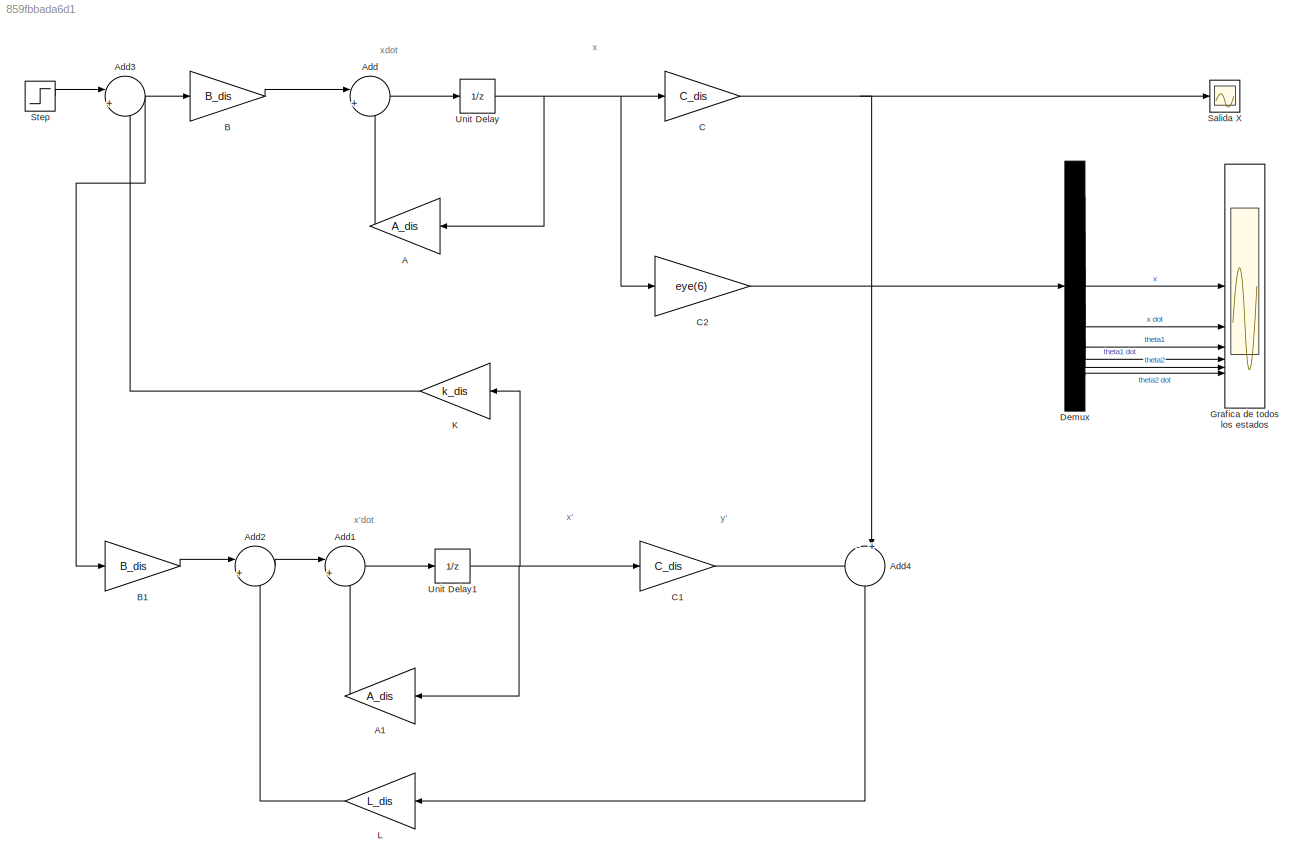
MODEL slx_859fbbada6d1
KIND model
CONFIG AbsTol = auto
CONFIG EnableMultiTasking = off
CONFIG FixedStep = auto
CONFIG MaxStep = auto
CONFIG MinStep = auto
CONFIG RelTol = 1e-3
CONFIG SampleTimeConstraint = Unconstrained
CONFIG SolverName = VariableStepAuto
CONFIG StartTime = 0.0
CONFIG StopTime = 25.0
BLOCK [Gain] A
  Gain = A_dis
  Multiplication = Matrix(K*u) (u vector)
  NameLocation = top
BLOCK [Gain] A1
  Gain = A_dis
  Multiplication = Matrix(K*u) (u vector)
  NameLocation = top
BLOCK [Sum] Add
  Inputs = |++
BLOCK [Sum] Add1
  Inputs = |++
BLOCK [Sum] Add2
  Inputs = |++
BLOCK [Sum] Add3
  Inputs = |+-
BLOCK [Sum] Add4
  Inputs = -+|
  NameLocation = left
BLOCK [Gain] B
  Gain = B_dis
  Multiplication = Matrix(K*u) (u vector)
BLOCK [Gain] B1
  Gain = B_dis
  Multiplication = Matrix(K*u) (u vector)
BLOCK [Gain] C
  Gain = C_dis
  Multiplication = Matrix(K*u) (u vector)
BLOCK [Gain] C1
  Gain = C_dis
  Multiplication = Matrix(K*u) (u vector)
BLOCK [Gain] C2
  Gain = eye(6)
  Multiplication = Matrix(K*u) (u vector)
BLOCK [Demux] Demux
  Outputs = 6
BLOCK [Scope] Grafica de todos los estados
  Floating = off
  NumInputPorts = 6
  ScopeSpecificationString = Simulink.scopes.TimeScopeBlockCfg('CurrentConfiguration', extmgr.ConfigurationSet(extmgr.Configuration('Core','General UI',true),extmgr.Configuration('Core','Source UI',true),extmgr.Configuration('Sources','WiredSimulink',true,'DataLoggingVariableName','ScopeData1'),extmgr.Configuration('Visuals','Time Domain',true,'SerializedDisplays',{struct('MinYLimReal','-0.00612','MaxYLimReal','0.03035','YLab...<+4860ch>
BLOCK [Gain] K
  Gain = k_dis
  Multiplication = Matrix(K*u) (u vector)
  NameLocation = top
BLOCK [Gain] L
  Gain = L_dis
  Multiplication = Matrix(K*u) (u vector)
  NameLocation = top
BLOCK [Scope] Salida X
  Floating = off
  NumInputPorts = 1
  ScopeSpecificationString = Simulink.scopes.TimeScopeBlockCfg('CurrentConfiguration', extmgr.ConfigurationSet(extmgr.Configuration('Core','General UI',true),extmgr.Configuration('Core','Source UI',true),extmgr.Configuration('Sources','WiredSimulink',true),extmgr.Configuration('Visuals','Time Domain',true,'SerializedDisplays',{struct('MinYLimReal','-0.00612','MaxYLimReal','0.03035','YLabelReal','','MinYLimMag','0.00000','MaxY...<+1350ch>
BLOCK [Step] Step
  SampleTime = 0
BLOCK [UnitDelay] Unit Delay
  HasFrameUpgradeWarning = on
  SampleTime = tm
BLOCK [UnitDelay] Unit Delay1
  HasFrameUpgradeWarning = on
  SampleTime = tm
ANNOTATION (root): x
ANNOTATION (root): x'
ANNOTATION (root): x'dot
ANNOTATION (root): xdot
ANNOTATION (root): y'
LINE A1:1 -> Add1:2
LINE A:1 -> Add:2
LINE Add1:1 -> Unit Delay1:1
LINE Add2:1 -> Add1:1
NET Add3:1 -> B1:1, B:1
LINE Add4:1 -> L:1
LINE Add:1 -> Unit Delay:1
LINE B1:1 -> Add2:1
LINE B:1 -> Add:1
LINE C1:1 -> Add4:1
LINE C2:1 -> Demux:1
NET C:1 -> Add4:2, Salida X:1
LINE Demux:1 -> Grafica de todos los estados:1
LINE Demux:2 -> Grafica de todos los estados:2
LINE Demux:3 -> Grafica de todos los estados:3
LINE Demux:4 -> Grafica de todos los estados:4
LINE Demux:5 -> Grafica de todos los estados:5
LINE Demux:6 -> Grafica de todos los estados:6
LINE K:1 -> Add3:2
LINE L:1 -> Add2:2
LINE Step:1 -> Add3:1
NET Unit Delay1:1 -> A1:1, C1:1, K:1
NET Unit Delay:1 -> A:1, C2:1, C:1
note: NET lines group one-source signal fan-out (src -> all destinations, sorted); 1:1 wires keep LINE
